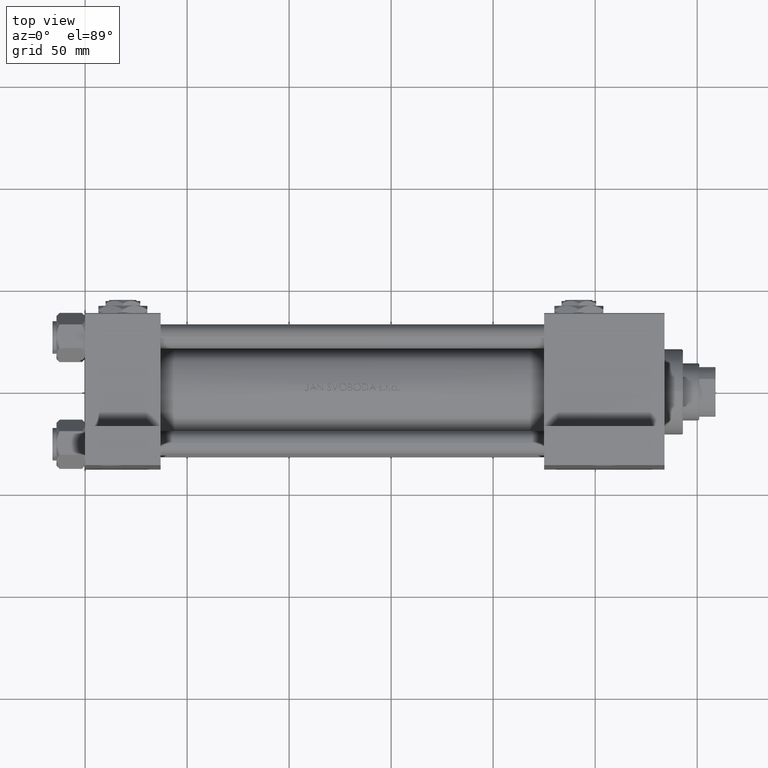
[diagram: clean part render]
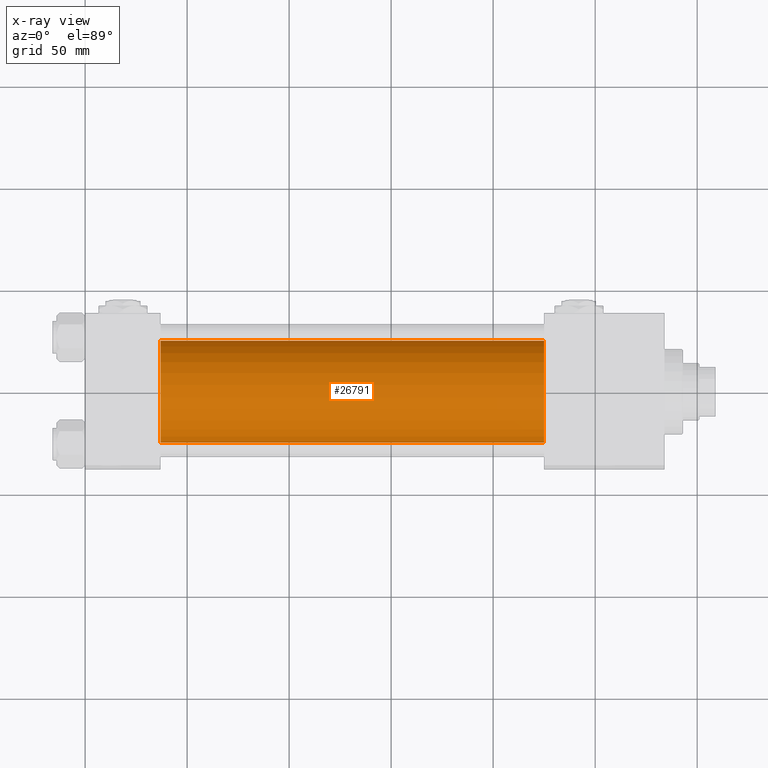
[diagram: x-ray — body ghosted, one internal face saturated and labeled with its STEP entity id]
A machine part, top view, then the same camera in x-ray: the body is ghosted and one INTERNAL B-rep face — a face not visible from any outside direction — is saturated and labeled: STEP entity #26791.
In plain terms, the highlighted cylindrical surface (partial cylindrical patch) has radius 25 mm, axis along (-1, -0, 0).
Its self-contained STEP definition (entity closure, byte-faithful):
#5 = DIRECTION ( 'NONE',  ( 0.000000000000000000, 0.000000000000000000, -1.000000000000000000 ) ) ;
#149 = CARTESIAN_POINT ( 'NONE',  ( 225.0000000000000000, 3.061616997868383043E-15, -25.50000000000000355 ) ) ;
#719 = DIRECTION ( 'NONE',  ( 1.000000000000000000, 0.000000000000000000, 0.000000000000000000 ) ) ;
#4868 = CIRCLE ( 'NONE', #45231, 25.00000000000000000 ) ;
#5396 = CARTESIAN_POINT ( 'NONE',  ( 37.00000000000000000, 0.000000000000000000, 24.50000000000000000 ) ) ;
#5763 = VERTEX_POINT ( 'NONE', #39945 ) ;
#6429 = CARTESIAN_POINT ( 'NONE',  ( 225.0000000000000000, 0.000000000000000000, -0.5000000000000004441 ) ) ;
#7332 = DIRECTION ( 'NONE',  ( -1.000000000000000000, -0.000000000000000000, -0.000000000000000000 ) ) ;
#8487 = EDGE_LOOP ( 'NONE', ( #41254, #34127, #13948, #33545 ) ) ;
#10143 = FACE_OUTER_BOUND ( 'NONE', #8487, .T. ) ;
#13948 = ORIENTED_EDGE ( 'NONE', *, *, #22847, .F. ) ;
#14764 = EDGE_CURVE ( 'NONE', #5763, #31855, #4868, .T. ) ;
#15259 = DIRECTION ( 'NONE',  ( -1.000000000000000000, -0.000000000000000000, -0.000000000000000000 ) ) ;
#16822 = VECTOR ( 'NONE', #15259, 1000.000000000000000 ) ;
#17175 = EDGE_CURVE ( 'NONE', #31855, #46199, #34112, .T. ) ;
#19196 = AXIS2_PLACEMENT_3D ( 'NONE', #6429, #7332, #28475 ) ;
#22295 = CARTESIAN_POINT ( 'NONE',  ( 225.0000000000000000, 3.061616997868383043E-15, -25.50000000000000355 ) ) ;
#22847 = EDGE_CURVE ( 'NONE', #24701, #46199, #29469, .T. ) ;
#24701 = VERTEX_POINT ( 'NONE', #5396 ) ;
#25252 = CYLINDRICAL_SURFACE ( 'NONE', #19196, 25.00000000000000000 ) ;
#26701 = CARTESIAN_POINT ( 'NONE',  ( 37.00000000000000000, 3.061616997868383043E-15, -25.50000000000000355 ) ) ;
#26791 = ADVANCED_FACE ( 'NONE', ( #10143 ), #25252, .F. ) ;
#28475 = DIRECTION ( 'NONE',  ( 0.000000000000000000, 0.000000000000000000, 1.000000000000000000 ) ) ;
#28647 = AXIS2_PLACEMENT_3D ( 'NONE', #41148, #33966, #5 ) ;
#29469 = CIRCLE ( 'NONE', #28647, 25.00000000000000000 ) ;
#31855 = VERTEX_POINT ( 'NONE', #22295 ) ;
#33545 = ORIENTED_EDGE ( 'NONE', *, *, #39334, .F. ) ;
#33701 = CARTESIAN_POINT ( 'NONE',  ( 225.0000000000000000, 0.000000000000000000, -0.5000000000000004441 ) ) ;
#33966 = DIRECTION ( 'NONE',  ( 1.000000000000000000, 0.000000000000000000, 0.000000000000000000 ) ) ;
#34112 = LINE ( 'NONE', #149, #16822 ) ;
#34127 = ORIENTED_EDGE ( 'NONE', *, *, #17175, .T. ) ;
#34543 = DIRECTION ( 'NONE',  ( -1.000000000000000000, -0.000000000000000000, -0.000000000000000000 ) ) ;
#37656 = DIRECTION ( 'NONE',  ( 0.000000000000000000, 0.000000000000000000, -1.000000000000000000 ) ) ;
#38264 = CARTESIAN_POINT ( 'NONE',  ( 225.0000000000000000, 0.000000000000000000, 24.50000000000000000 ) ) ;
#39334 = EDGE_CURVE ( 'NONE', #5763, #24701, #41977, .T. ) ;
#39945 = CARTESIAN_POINT ( 'NONE',  ( 225.0000000000000000, 0.000000000000000000, 24.50000000000000000 ) ) ;
#41148 = CARTESIAN_POINT ( 'NONE',  ( 37.00000000000000000, 0.000000000000000000, -0.5000000000000004441 ) ) ;
#41254 = ORIENTED_EDGE ( 'NONE', *, *, #14764, .T. ) ;
#41977 = LINE ( 'NONE', #38264, #45696 ) ;
#45231 = AXIS2_PLACEMENT_3D ( 'NONE', #33701, #719, #37656 ) ;
#45696 = VECTOR ( 'NONE', #34543, 1000.000000000000000 ) ;
#46199 = VERTEX_POINT ( 'NONE', #26701 ) ;